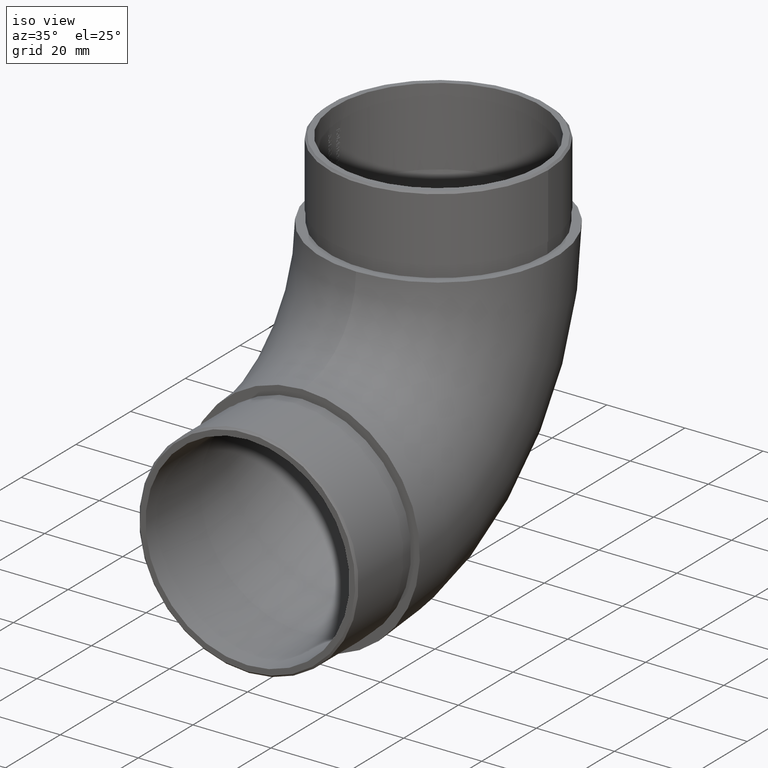
[diagram: clean part render]
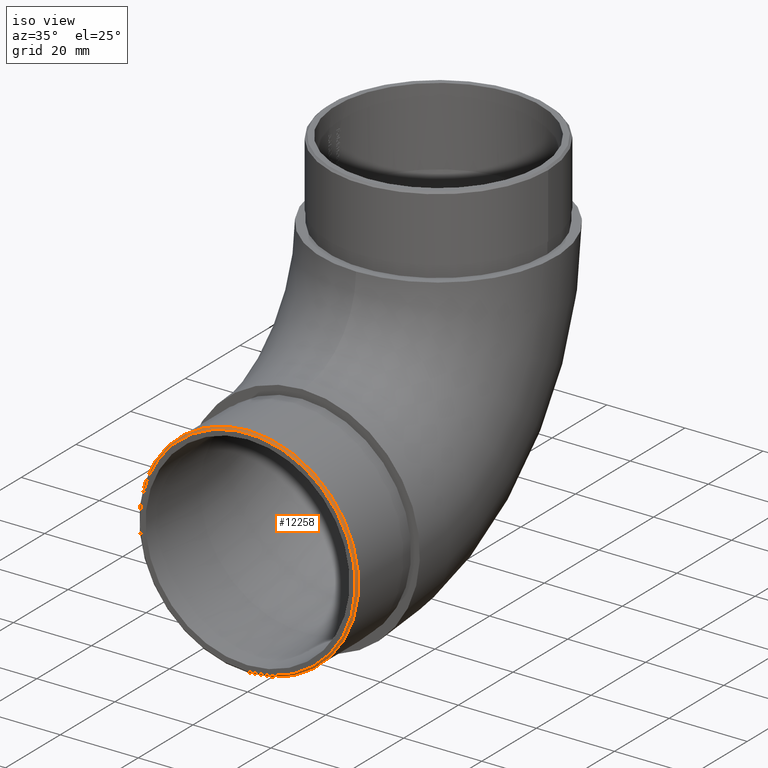
[diagram: same view with one face highlighted and labeled with its STEP entity id]
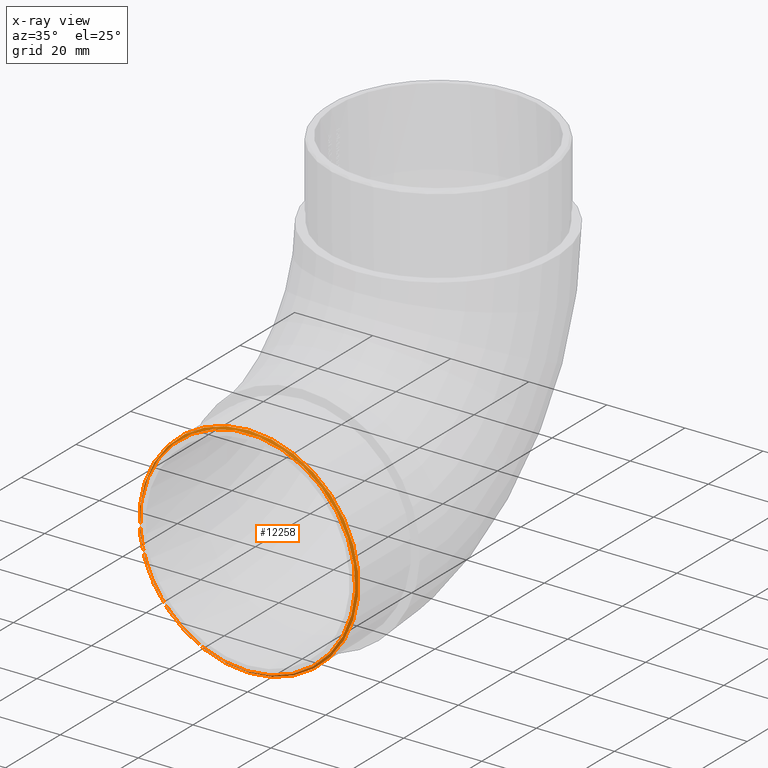
[diagram: x-ray of the same camera — body ghosted, the highlighted face saturated]
A machine part, iso view. The second image highlights one B-rep face of the part: STEP entity #12258.
The next image is the same camera in x-ray: the body ghosted, the highlighted face saturated — about 0% of this face is hidden behind the body in this view.
In plain terms, the highlighted conical surface has half-angle 45 deg.
Its self-contained STEP definition (entity closure, byte-faithful):
#393 = CIRCLE ( 'NONE', #11657, 28.09999999999999800 ) ;
#439 = AXIS2_PLACEMENT_3D ( 'NONE', #7466, #1799, #6468 ) ;
#621 = CARTESIAN_POINT ( 'NONE',  ( 0.0000000000000000000, -20.00000000000000000, 30.15000000000000200 ) ) ;
#1519 = EDGE_LOOP ( 'NONE', ( #8488 ) ) ;
#1570 = CARTESIAN_POINT ( 'NONE',  ( 0.0000000000000000000, -19.50000000000001100, 30.15000000000000200 ) ) ;
#1799 = DIRECTION ( 'NONE',  ( 0.0000000000000000000, -1.000000000000000000, 0.0000000000000000000 ) ) ;
#2611 = DIRECTION ( 'NONE',  ( 0.0000000000000000000, 1.000000000000000000, 0.0000000000000000000 ) ) ;
#2904 = FACE_OUTER_BOUND ( 'NONE', #4951, .T. ) ;
#4077 = VERTEX_POINT ( 'NONE', #6498 ) ;
#4326 = DIRECTION ( 'NONE',  ( 0.0000000000000000000, 1.000000000000000000, 0.0000000000000000000 ) ) ;
#4951 = EDGE_LOOP ( 'NONE', ( #4979 ) ) ;
#4979 = ORIENTED_EDGE ( 'NONE', *, *, #7176, .F. ) ;
#5268 = VERTEX_POINT ( 'NONE', #11330 ) ;
#5672 = EDGE_CURVE ( 'NONE', #4077, #4077, #7246, .T. ) ;
#6468 = DIRECTION ( 'NONE',  ( 0.0000000000000000000, 0.0000000000000000000, -1.000000000000000000 ) ) ;
#6498 = CARTESIAN_POINT ( 'NONE',  ( 0.0000000000000000000, -20.00000000000000000, 2.550000000000010500 ) ) ;
#6903 = CONICAL_SURFACE ( 'NONE', #7319, 27.59999999999999400, 0.7853981633974621600 ) ;
#7176 = EDGE_CURVE ( 'NONE', #5268, #5268, #393, .T. ) ;
#7246 = CIRCLE ( 'NONE', #439, 27.59999999999999400 ) ;
#7319 = AXIS2_PLACEMENT_3D ( 'NONE', #621, #4326, #8157 ) ;
#7466 = CARTESIAN_POINT ( 'NONE',  ( 0.0000000000000000000, -20.00000000000000000, 30.15000000000000200 ) ) ;
#8157 = DIRECTION ( 'NONE',  ( 0.0000000000000000000, 0.0000000000000000000, 1.000000000000000000 ) ) ;
#8210 = DIRECTION ( 'NONE',  ( 0.0000000000000000000, 0.0000000000000000000, -1.000000000000000000 ) ) ;
#8488 = ORIENTED_EDGE ( 'NONE', *, *, #5672, .F. ) ;
#10143 = FACE_BOUND ( 'NONE', #1519, .T. ) ;
#11330 = CARTESIAN_POINT ( 'NONE',  ( 0.0000000000000000000, -19.50000000000001100, 2.050000000000006500 ) ) ;
#11657 = AXIS2_PLACEMENT_3D ( 'NONE', #1570, #2611, #8210 ) ;
#12258 = ADVANCED_FACE ( 'NONE', ( #2904, #10143 ), #6903, .T. ) ;